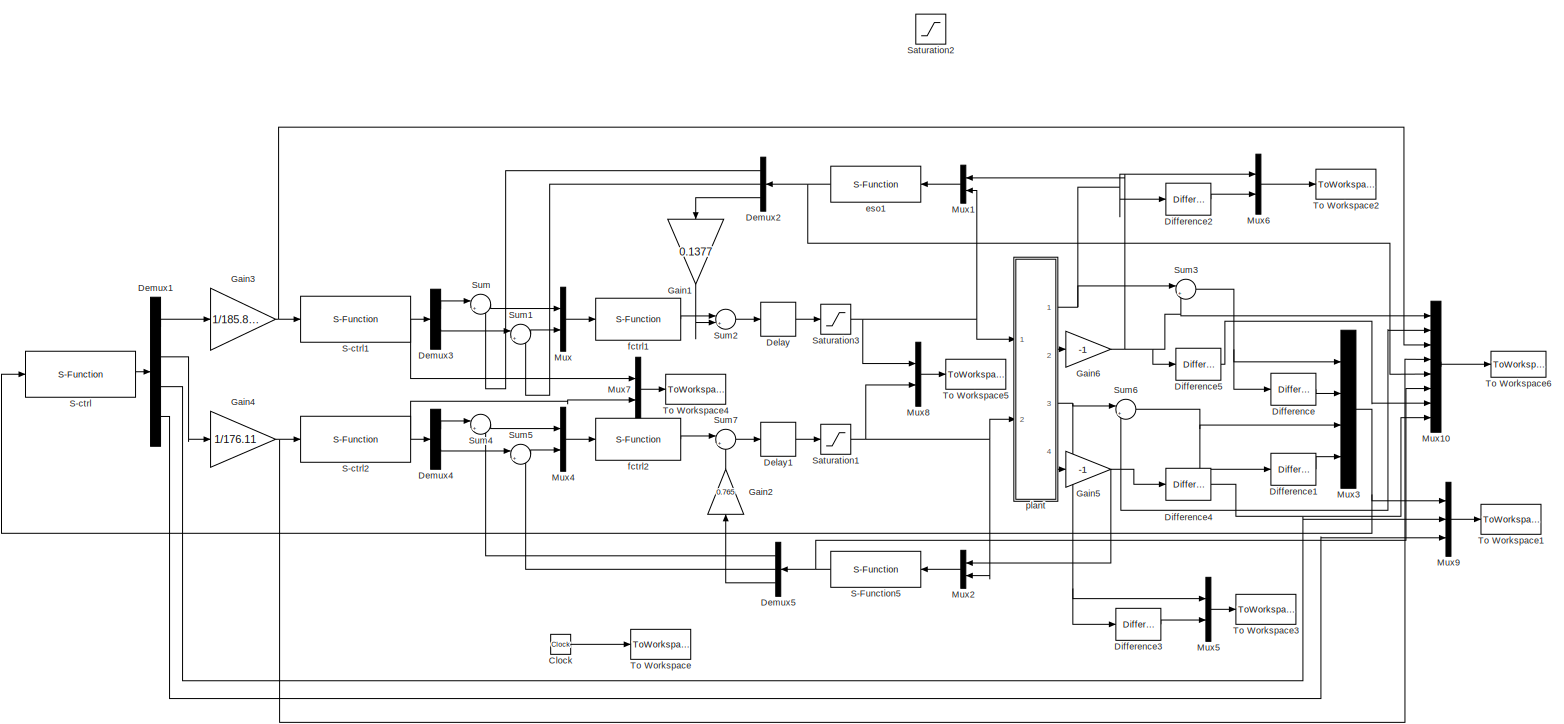
[diagram: root canvas - part 1/1, most of the canvas]
MODEL slx_49bb7cf5a472
KIND model
CONFIG AbsTol = auto
CONFIG EnableMultiTasking = off
CONFIG FixedStep = auto
CONFIG MaxStep = auto
CONFIG MinStep = auto
CONFIG RelTol = 1e-3
CONFIG SampleTimeConstraint = Unconstrained
CONFIG Solver = VariableStepAuto
CONFIG SolverName = VariableStepAuto
CONFIG StartTime = 0.0
CONFIG StopTime = 5
BLOCK [Clock] Clock
BLOCK [Delay] Delay
  DelayLength = 1
  InputPortMap = u0
  Ports = [1, 1]
BLOCK [Delay] Delay1
  DelayLength = 1
  InputPortMap = u0
  Ports = [1, 1]
BLOCK [Demux] Demux1
  DisplayOption = bar
  Ports = [1, 4]
BLOCK [Demux] Demux2
  DisplayOption = bar
  Outputs = 3
  Ports = [1, 3]
BLOCK [Demux] Demux3
  DisplayOption = bar
  Outputs = 2
  Ports = [1, 2]
BLOCK [Demux] Demux4
  DisplayOption = bar
  Outputs = 2
  Ports = [1, 2]
BLOCK [Demux] Demux5
  DisplayOption = bar
  Outputs = 3
  Ports = [1, 3]
BLOCK [Reference] Difference  REF=simulink/Discrete/Difference
  Ports = [1, 1]
  SourceBlock = simulink/Discrete/Difference
  SourceType = Difference
BLOCK [Reference] Difference1  REF=simulink/Discrete/Difference
  Ports = [1, 1]
  SourceBlock = simulink/Discrete/Difference
  SourceType = Difference
BLOCK [Reference] Difference2  REF=simulink/Discrete/Difference
  Ports = [1, 1]
  SourceBlock = simulink/Discrete/Difference
  SourceType = Difference
BLOCK [Reference] Difference3  REF=simulink/Discrete/Difference
  Ports = [1, 1]
  SourceBlock = simulink/Discrete/Difference
  SourceType = Difference
BLOCK [Reference] Difference4  REF=simulink/Discrete/Difference
  Ports = [1, 1]
  SourceBlock = simulink/Discrete/Difference
  SourceType = Difference
BLOCK [Reference] Difference5  REF=simulink/Discrete/Difference
  Ports = [1, 1]
  SourceBlock = simulink/Discrete/Difference
  SourceType = Difference
BLOCK [Gain] Gain1
  Gain = 0.1377
  OutDataTypeStr = Inherit: Inherit via internal rule
  ParamDataTypeStr = Inherit: Inherit via internal rule
  SaturateOnIntegerOverflow = off
BLOCK [Gain] Gain2
  Gain = 0.765
  OutDataTypeStr = Inherit: Inherit via internal rule
  ParamDataTypeStr = Inherit: Inherit via internal rule
  SaturateOnIntegerOverflow = off
BLOCK [Gain] Gain3
  Gain = 1/185.8446
  OutDataTypeStr = Inherit: Inherit via internal rule
  ParamDataTypeStr = Inherit: Inherit via internal rule
  SaturateOnIntegerOverflow = off
BLOCK [Gain] Gain4
  Gain = 1/176.11
  OutDataTypeStr = Inherit: Inherit via internal rule
  ParamDataTypeStr = Inherit: Inherit via internal rule
  SaturateOnIntegerOverflow = off
BLOCK [Gain] Gain5
  Gain = -1
  OutDataTypeStr = Inherit: Inherit via internal rule
  ParamDataTypeStr = Inherit: Inherit via internal rule
  SaturateOnIntegerOverflow = off
BLOCK [Gain] Gain6
  Gain = -1
  OutDataTypeStr = Inherit: Inherit via internal rule
  ParamDataTypeStr = Inherit: Inherit via internal rule
  SaturateOnIntegerOverflow = off
BLOCK [Mux] Mux
  DisplayOption = bar
  Inputs = 2
  Ports = [2, 1]
BLOCK [Mux] Mux1
  DisplayOption = bar
  Inputs = 2
  Ports = [2, 1]
BLOCK [Mux] Mux10
  DisplayOption = bar
  Inputs = 8
  Ports = [8, 1]
BLOCK [Mux] Mux2
  DisplayOption = bar
  Inputs = 2
  Ports = [2, 1]
BLOCK [Mux] Mux3
  DisplayOption = bar
  Ports = [4, 1]
BLOCK [Mux] Mux4
  DisplayOption = bar
  Inputs = 2
  Ports = [2, 1]
BLOCK [Mux] Mux5
  DisplayOption = bar
  Inputs = 2
  Ports = [2, 1]
BLOCK [Mux] Mux6
  DisplayOption = bar
  Inputs = 2
  Ports = [2, 1]
BLOCK [Mux] Mux7
  DisplayOption = bar
  Inputs = 2
  Ports = [2, 1]
BLOCK [Mux] Mux8
  DisplayOption = bar
  Inputs = 2
  Ports = [2, 1]
BLOCK [Mux] Mux9
  DisplayOption = bar
  Inputs = 3
  Ports = [3, 1]
BLOCK [S-Function] S-Function5
  EnableBusSupport = off
  FunctionName = eso_ADRC2
  Ports = [1, 1]
  SFcnIsStateOwnerBlock = off
  SFunctionDeploymentMode = off
BLOCK [S-Function] S-ctrl
  EnableBusSupport = off
  FunctionName = mctrl_SMC2
  Parameters = P
  Ports = [1, 1]
  SFcnIsStateOwnerBlock = off
  SFunctionDeploymentMode = off
BLOCK [S-Function] S-ctrl1
  EnableBusSupport = off
  FunctionName = TD_ADRC1
  Ports = [1, 1]
  SFcnIsStateOwnerBlock = off
  SFunctionDeploymentMode = off
BLOCK [S-Function] S-ctrl2
  EnableBusSupport = off
  FunctionName = TD_ADRC2
  Ports = [1, 1]
  SFcnIsStateOwnerBlock = off
  SFunctionDeploymentMode = off
BLOCK [Saturate] Saturation1
  InputPortMap = u0
  LowerLimit = -020
  Ports = [1, 1]
  UpperLimit = 20
BLOCK [Saturate] Saturation2
  InputPortMap = u0
  LowerLimit = -14
  Ports = [1, 1]
  UpperLimit = 14
BLOCK [Saturate] Saturation3
  InputPortMap = u0
  LowerLimit = -25
  Ports = [1, 1]
  UpperLimit = 25
BLOCK [Sum] Sum
  IconShape = round
  InputSameDT = off
  Inputs = |+-
  OutDataTypeStr = Inherit: Inherit via internal rule
  Ports = [2, 1]
  SaturateOnIntegerOverflow = off
BLOCK [Sum] Sum1
  IconShape = round
  InputSameDT = off
  Inputs = |+-
  OutDataTypeStr = Inherit: Inherit via internal rule
  Ports = [2, 1]
  SaturateOnIntegerOverflow = off
BLOCK [Sum] Sum2
  IconShape = round
  InputSameDT = off
  Inputs = |+-
  OutDataTypeStr = Inherit: Inherit via internal rule
  Ports = [2, 1]
  SaturateOnIntegerOverflow = off
BLOCK [Sum] Sum3
  IconShape = round
  InputSameDT = off
  Inputs = |+-
  OutDataTypeStr = Inherit: Inherit via internal rule
  Ports = [2, 1]
  SaturateOnIntegerOverflow = off
BLOCK [Sum] Sum4
  IconShape = round
  InputSameDT = off
  Inputs = |+-
  OutDataTypeStr = Inherit: Inherit via internal rule
  Ports = [2, 1]
  SaturateOnIntegerOverflow = off
BLOCK [Sum] Sum5
  IconShape = round
  InputSameDT = off
  Inputs = |+-
  OutDataTypeStr = Inherit: Inherit via internal rule
  Ports = [2, 1]
  SaturateOnIntegerOverflow = off
BLOCK [Sum] Sum6
  IconShape = round
  InputSameDT = off
  Inputs = |+-
  OutDataTypeStr = Inherit: Inherit via internal rule
  Ports = [2, 1]
  SaturateOnIntegerOverflow = off
BLOCK [Sum] Sum7
  IconShape = round
  InputSameDT = off
  Inputs = |+-
  OutDataTypeStr = Inherit: Inherit via internal rule
  Ports = [2, 1]
  SaturateOnIntegerOverflow = off
BLOCK [ToWorkspace] To Workspace
  FixptAsFi = on
  MaxDataPoints = inf
  Ports = [1]
  SampleTime = -1
  Save2DSignal = 2-D array (concatenate along first dimension)
  VariableName = t
BLOCK [ToWorkspace] To Workspace1
  FixptAsFi = on
  MaxDataPoints = inf
  Ports = [1]
  SampleTime = -1
  Save2DSignal = 2-D array (concatenate along first dimension)
  VariableName = q
BLOCK [ToWorkspace] To Workspace2
  FixptAsFi = on
  MaxDataPoints = inf
  Ports = [1]
  SampleTime = -1
  Save2DSignal = 2-D array (concatenate along first dimension)
  VariableName = Q1
BLOCK [ToWorkspace] To Workspace3
  FixptAsFi = on
  MaxDataPoints = inf
  Ports = [1]
  SampleTime = -1
  Save2DSignal = 2-D array (concatenate along first dimension)
  VariableName = Q2
BLOCK [ToWorkspace] To Workspace4
  FixptAsFi = on
  MaxDataPoints = inf
  Ports = [1]
  SampleTime = -1
  Save2DSignal = 2-D array (concatenate along first dimension)
  VariableName = Trans
BLOCK [ToWorkspace] To Workspace5
  FixptAsFi = on
  MaxDataPoints = inf
  Ports = [1]
  SampleTime = -1
  Save2DSignal = 2-D array (concatenate along first dimension)
  VariableName = T
BLOCK [ToWorkspace] To Workspace6
  FixptAsFi = on
  MaxDataPoints = inf
  Ports = [1]
  SampleTime = -1
  Save2DSignal = 2-D array (concatenate along first dimension)
  VariableName = x
BLOCK [S-Function] eso1
  EnableBusSupport = off
  FunctionName = eso_ADRC1
  Ports = [1, 1]
  SFcnIsStateOwnerBlock = off
  SFunctionDeploymentMode = off
BLOCK [S-Function] fctrl1
  EnableBusSupport = off
  FunctionName = fctrl_ADRC1
  Ports = [1, 1]
  SFcnIsStateOwnerBlock = off
  SFunctionDeploymentMode = off
BLOCK [S-Function] fctrl2
  EnableBusSupport = off
  FunctionName = fctrl_ADRC2
  Ports = [1, 1]
  SFcnIsStateOwnerBlock = off
  SFunctionDeploymentMode = off
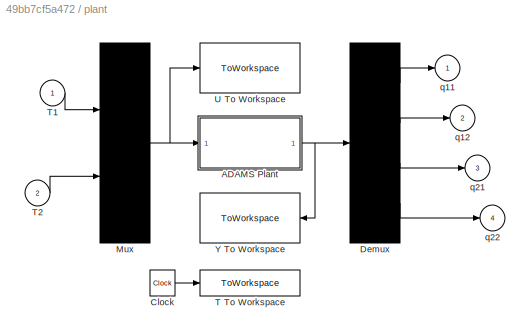
BLOCK [SubSystem] plant
  Ports = [2, 4]
  RequestExecContextInheritance = off
  ShowPortLabels = none
  Variant = off
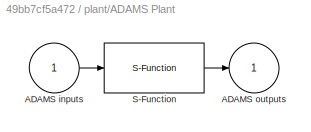
BLOCK [SubSystem] plant/ADAMS Plant
  InitFcn = clear mex
  LoadFcn = %check based on dialog box setting for when setting by popup menu                                             \nif exist('ADAMS_solver_type')                                                                                 \n  if strcmp(ADAMS_solver_type,'C++')                                                                          \n    set_param(gcb,'exetyp','C++');                                 ...<+3488ch>
  OpenFcn = open_system(gcb,'mask')                                                                                                                          \nif not(exist('set_some_params_states'))                                                                                                          \n                                                                                                            ...<+625ch>
  Ports = [1, 1]
  RequestExecContextInheritance = off
  Variant = off
BLOCK [Inport] plant/ADAMS Plant/ADAMS inputs
  IconDisplay = Port number
BLOCK [Outport] plant/ADAMS Plant/ADAMS outputs
  IconDisplay = Port number
  InitialOutput = 0
BLOCK [S-Function] plant/ADAMS Plant/S-Function
  EnableBusSupport = off
  FunctionName = adams_plant
  Parameters = exevie,exesol,stat,outfil,nampre,o_rate,nam_in,namout,dft,modsim,modani,dt_out,inicmd,exetyp,comtyp,ada_host, workdir,pin_interp_order,pout_extrap_order,pin_extrap_order,pout_interp_order,simulink_lead_cosim
  Ports = [1, 1]
  SFcnIsStateOwnerBlock = off
  SFunctionDeploymentMode = off
  StopFcn = clear mex
BLOCK [Clock] plant/Clock
BLOCK [Demux] plant/Demux
  Ports = [1, 4]
BLOCK [Mux] plant/Mux
  Inputs = 2
  Ports = [2, 1]
BLOCK [ToWorkspace] plant/T To Workspace
  MaxDataPoints = 100000
  Ports = [1]
  VariableName = ADAMS_tout
BLOCK [Inport] plant/T1
  IconDisplay = Port number
BLOCK [Inport] plant/T2
  IconDisplay = Port number
  Port = 2
BLOCK [ToWorkspace] plant/U To Workspace
  MaxDataPoints = 100000
  Ports = [1]
  VariableName = ADAMS_uout
BLOCK [ToWorkspace] plant/Y To Workspace
  MaxDataPoints = 100000
  Ports = [1]
  VariableName = ADAMS_yout
BLOCK [Outport] plant/q11
  IconDisplay = Port number
BLOCK [Outport] plant/q12
  IconDisplay = Port number
  Port = 2
BLOCK [Outport] plant/q21
  IconDisplay = Port number
  Port = 3
BLOCK [Outport] plant/q22
  IconDisplay = Port number
  Port = 4
LINE Clock:1 -> To Workspace:1
LINE Delay1:1 -> Saturation1:1
LINE Delay:1 -> Saturation3:1
LINE Demux1:1 -> Gain3:1
LINE Demux1:2 -> Gain4:1
LINE Demux1:3 -> Mux9:2
LINE Demux1:4 -> Mux9:3
LINE Demux2:1 -> Sum:2
LINE Demux2:2 -> Sum1:2
LINE Demux2:3 -> Gain1:1
LINE Demux3:1 -> Sum:1
LINE Demux3:2 -> Sum1:1
LINE Demux4:1 -> Sum4:1
LINE Demux4:2 -> Sum5:1
LINE Demux5:1 -> Sum4:2
LINE Demux5:2 -> Sum5:2
LINE Demux5:3 -> Gain2:1
LINE Difference1:1 -> Mux3:4
LINE Difference2:1 -> Mux6:2
LINE Difference3:1 -> Mux5:2
LINE Difference4:1 -> Mux10:8
LINE Difference5:1 -> Mux10:7
LINE Difference:1 -> Mux3:2
LINE Gain1:1 -> Sum2:2
LINE Gain2:1 -> Sum7:2
NET Gain3:1 -> Mux10:3, S-ctrl1:1
NET Gain4:1 -> Mux10:4, S-ctrl2:1
NET Gain5:1 -> Difference4:1, Mux10:2, Mux2:1, Sum6:2
NET Gain6:1 -> Difference5:1, Mux10:1, Mux1:1, Sum3:2
LINE Mux10:1 -> To Workspace6:1
LINE Mux1:1 -> eso1:1
LINE Mux2:1 -> S-Function5:1
NET Mux3:1 -> Mux9:1, S-ctrl:1
LINE Mux4:1 -> fctrl2:1
LINE Mux5:1 -> To Workspace3:1
LINE Mux6:1 -> To Workspace2:1
LINE Mux7:1 -> To Workspace4:1
LINE Mux8:1 -> To Workspace5:1
LINE Mux9:1 -> To Workspace1:1
LINE Mux:1 -> fctrl1:1
NET S-Function5:1 -> Demux5:1, Mux10:6
NET S-ctrl1:1 -> Demux3:1, Mux7:1
NET S-ctrl2:1 -> Demux4:1, Mux7:2
LINE S-ctrl:1 -> Demux1:1
NET Saturation1:1 -> Mux2:2, Mux8:2, plant:2
NET Saturation3:1 -> Mux1:2, Mux8:1, plant:1
LINE Sum1:1 -> Mux:2
LINE Sum2:1 -> Delay:1
NET Sum3:1 -> Difference:1, Mux3:1
LINE Sum4:1 -> Mux4:1
LINE Sum5:1 -> Mux4:2
NET Sum6:1 -> Difference1:1, Mux3:3
LINE Sum7:1 -> Delay1:1
LINE Sum:1 -> Mux:1
NET eso1:1 -> Demux2:1, Mux10:5
LINE fctrl1:1 -> Sum2:1
LINE fctrl2:1 -> Sum7:1
LINE plant/ADAMS Plant/ADAMS inputs:1 -> plant/ADAMS Plant/S-Function:1
LINE plant/ADAMS Plant/S-Function:1 -> plant/ADAMS Plant/ADAMS outputs:1
NET plant/ADAMS Plant:1 -> plant/Demux:1, plant/Y To Workspace:1
LINE plant/Clock:1 -> plant/T To Workspace:1
LINE plant/Demux:1 -> plant/q11:1
LINE plant/Demux:2 -> plant/q12:1
LINE plant/Demux:3 -> plant/q21:1
LINE plant/Demux:4 -> plant/q22:1
NET plant/Mux:1 -> plant/ADAMS Plant:1, plant/U To Workspace:1
LINE plant/T1:1 -> plant/Mux:1
LINE plant/T2:1 -> plant/Mux:2
NET plant:1 -> Difference2:1, Mux6:1, Sum3:1
LINE plant:2 -> Gain6:1
NET plant:3 -> Difference3:1, Mux5:1, Sum6:1
LINE plant:4 -> Gain5:1
note: NET lines group one-source signal fan-out (src -> all destinations, sorted); 1:1 wires keep LINE
